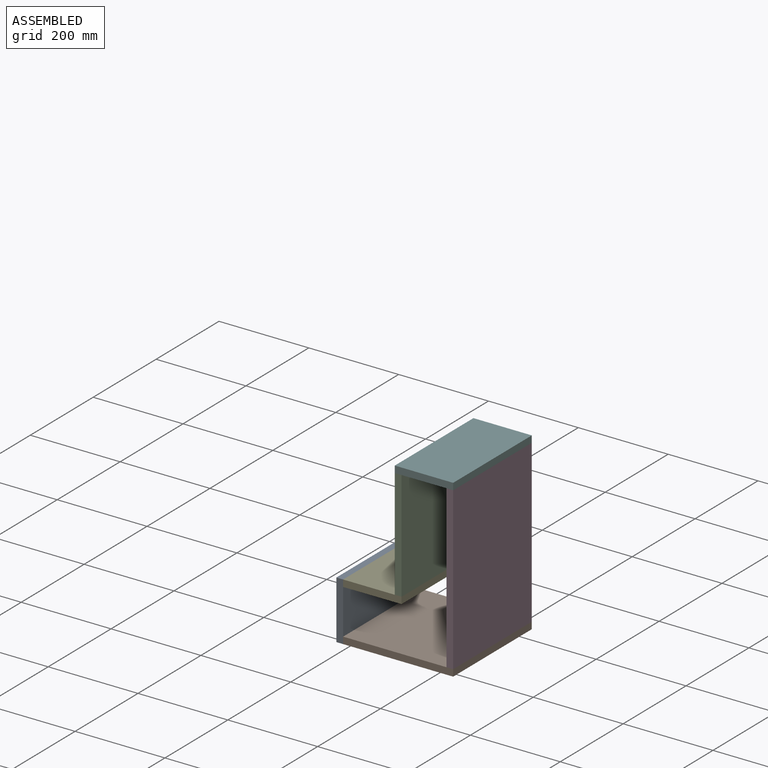
[diagram: assembled view]
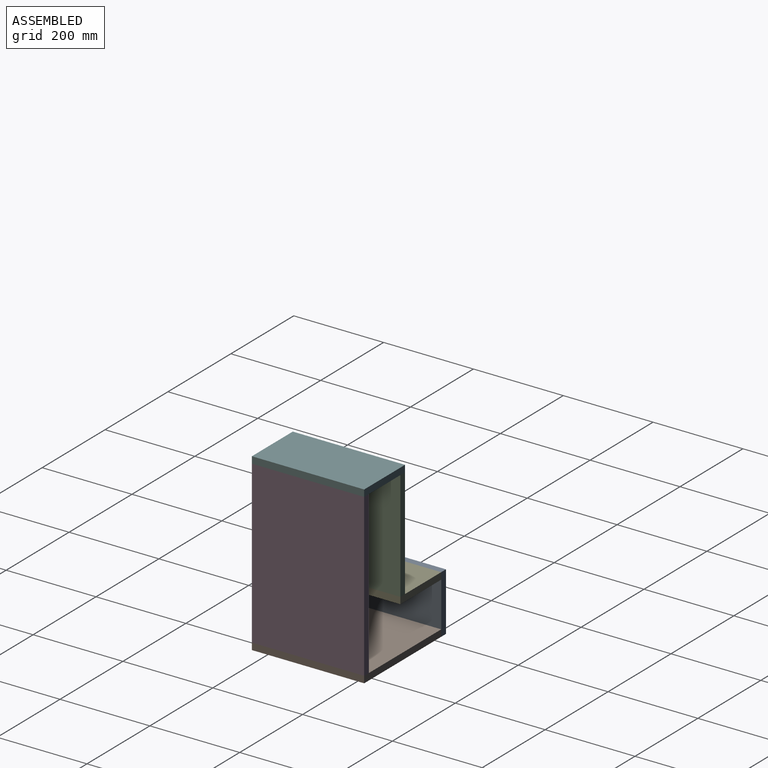
[diagram: assembled view, second angle]
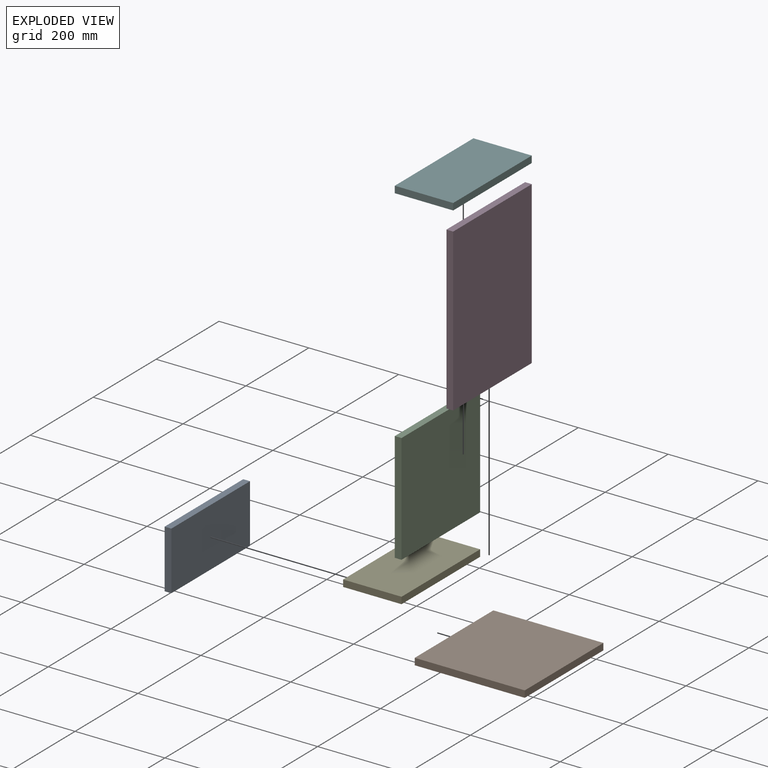
[diagram: exploded view]
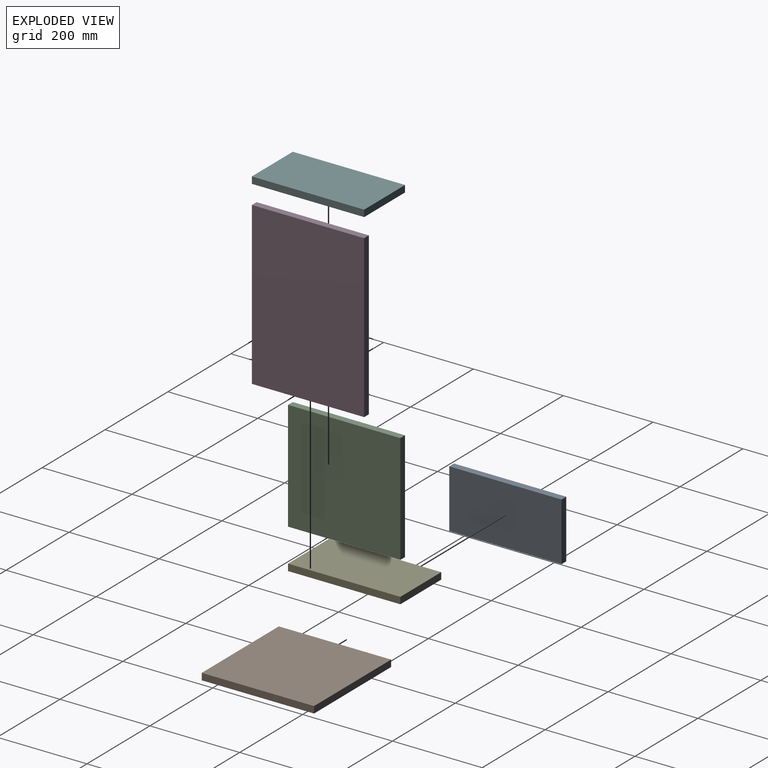
[diagram: exploded view, second angle]
ASSEMBLY  parts=6 mates=5
PART A: 6 faces, bbox 130x15x250 mm
  f0: plane 130x15mm, normal (0,0,1), area 1950mm2, adj f1,f3,f4,f5
  f1: plane 250x15mm, normal (-1,0,0), area 3750mm2, adj f0,f2,f4,f5
  f2: plane 130x15mm, normal (0,0,-1), area 1950mm2, adj f1,f3,f4,f5
  f3: plane 250x15mm, normal (1,0,0), area 3750mm2, adj f0,f2,f4,f5
  f4: plane 250x130mm, normal (0,-1,0), area 32500mm2, adj f0,f1,f2,f3
  f5: plane 250x130mm, normal (0,1,0), area 32500mm2, adj f0,f1,f2,f3
PART B: 6 faces, bbox 245x15x250 mm
  f0: plane 245x15mm, normal (0,0,1), area 3675mm2, adj f1,f3,f4,f5
  f1: plane 250x15mm, normal (-1,0,0), area 3750mm2, adj f0,f2,f4,f5
  f2: plane 245x15mm, normal (0,0,-1), area 3675mm2, adj f1,f3,f4,f5
  f3: plane 250x15mm, normal (1,0,0), area 3750mm2, adj f0,f2,f4,f5
  f4: plane 250x245mm, normal (0,-1,0), area 61250mm2, adj f0,f1,f2,f3
  f5: plane 250x245mm, normal (0,1,0), area 61250mm2, adj f0,f1,f2,f3
PART C: same geometry as B
PART D: 6 faces, bbox 360x15x250 mm
  f0: plane 360x15mm, normal (0,0,1), area 5400mm2, adj f1,f3,f4,f5
  f1: plane 250x15mm, normal (-1,0,0), area 3750mm2, adj f0,f2,f4,f5
  f2: plane 360x15mm, normal (0,0,-1), area 5400mm2, adj f1,f3,f4,f5
  f3: plane 250x15mm, normal (1,0,0), area 3750mm2, adj f0,f2,f4,f5
  f4: plane 360x250mm, normal (0,-1,0), area 90000mm2, adj f0,f1,f2,f3
  f5: plane 360x250mm, normal (0,1,0), area 90000mm2, adj f0,f1,f2,f3
PART E: same geometry as A
PART F: same geometry as A
PLACE A rot(axis=(-0.58,-0.58,-0.58),120deg) t=(-405.62,-437.2,-12.79)mm
PLACE B rot(axis=(-1,0,0),90deg) t=(105,-56.45,-183.68)mm
PLACE C rot(axis=(-0.58,-0.58,-0.58),120deg) t=(-275.62,-56.45,456.94)mm
PLACE D rot(axis=(-0.58,0.58,0.58),120deg) t=(-175.62,-372.99,-433.3)mm
PLACE E rot(axis=(-1,0,0),90deg) t=(-234.73,-437.2,-68.68)mm
PLACE F rot(axis=(-1,0,0),90deg) t=(-119.73,-437.2,191.32)mm
MATE fastened D.f1 <-> F.f5  axis (0,0,1) through (-160.62,-300.26,191.32)mm
MATE fastened B.f4 <-> D.f3  axis (0,0,1) through (-160.62,-300.26,-168.68)mm
MATE fastened C.f3 <-> F.f5  axis (0,0,1) through (-290.62,-300.26,191.32)mm
MATE fastened A.f5 <-> B.f1  axis (1,0,0) through (-405.62,-300.26,-183.68)mm
MATE fastened E.f1 <-> A.f5  axis (-1,0,0) through (-405.62,-300.26,-53.68)mm
